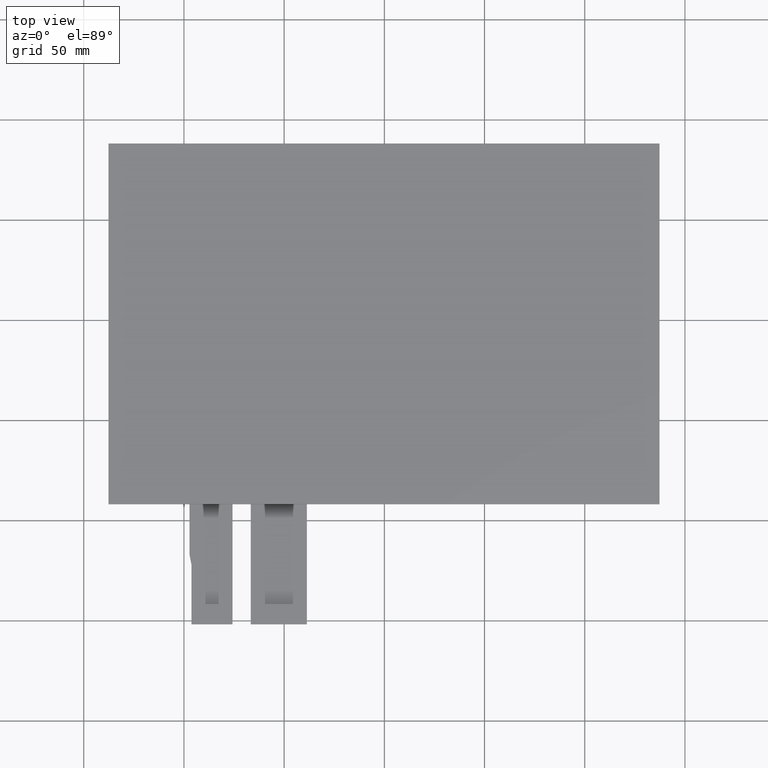
[diagram: clean part render]
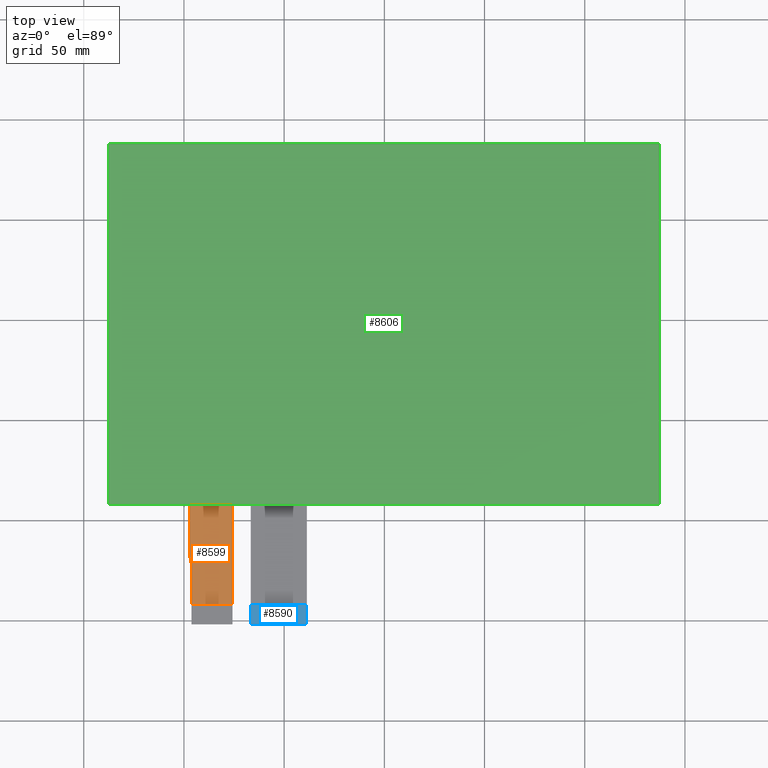
[diagram: same view with three faces highlighted in distinct colors, each labeled with its STEP entity id]
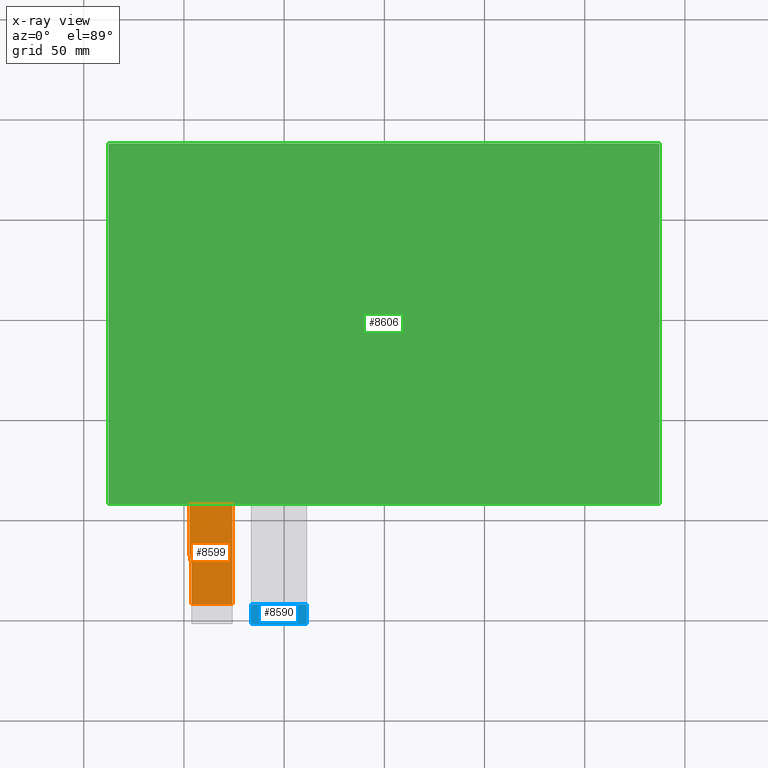
[diagram: x-ray of the same camera — body ghosted, the three highlighted faces saturated]
A machine part, top view with three faces highlighted in distinct colors.
The next image is the same camera in x-ray (body ghosted, the three faces saturated) — at least one of them is partly hidden behind the body in this view.
Their STEP definitions:

[orange] entity #8599 — the highlighted planar face has unit normal (0, 0, 1).
#469=PLANE('',#9037);
#879=FACE_OUTER_BOUND('',#1289,.T.);
#1289=EDGE_LOOP('',(#8149,#8150,#8151,#8152,#8153,#8154));
#2465=LINE('',#13446,#3675);
#2477=LINE('',#13470,#3687);
#2486=LINE('',#13489,#3696);
#2490=LINE('',#13497,#3700);
#2493=LINE('',#13502,#3703);
#2495=LINE('',#13505,#3705);
#3675=VECTOR('',#11011,10.);
#3687=VECTOR('',#11031,10.);
#3696=VECTOR('',#11050,10.);
#3700=VECTOR('',#11056,10.);
#3703=VECTOR('',#11061,10.);
#3705=VECTOR('',#11065,10.);
#4512=VERTEX_POINT('',#13443);
#4513=VERTEX_POINT('',#13445);
#4521=VERTEX_POINT('',#13469);
#4525=VERTEX_POINT('',#13487);
#4526=VERTEX_POINT('',#13488);
#4529=VERTEX_POINT('',#13496);
#5713=EDGE_CURVE('',#4513,#4512,#2465,.T.);
#5725=EDGE_CURVE('',#4521,#4513,#2477,.T.);
#5734=EDGE_CURVE('',#4525,#4526,#2486,.T.);
#5738=EDGE_CURVE('',#4526,#4529,#2490,.T.);
#5741=EDGE_CURVE('',#4529,#4521,#2493,.T.);
#5743=EDGE_CURVE('',#4525,#4512,#2495,.T.);
#8149=ORIENTED_EDGE('',*,*,#5725,.T.);
#8150=ORIENTED_EDGE('',*,*,#5713,.T.);
#8151=ORIENTED_EDGE('',*,*,#5743,.F.);
#8152=ORIENTED_EDGE('',*,*,#5734,.T.);
#8153=ORIENTED_EDGE('',*,*,#5738,.T.);
#8154=ORIENTED_EDGE('',*,*,#5741,.T.);
#8599=ADVANCED_FACE('',(#879),#469,.T.);
#9037=AXIS2_PLACEMENT_3D('',#13504,#11063,#11064);
#11011=DIRECTION('',(-4.44089209850063E-16,1.,0.));
#11031=DIRECTION('',(1.,0.,0.));
#11050=DIRECTION('',(0.,-1.,0.));
#11056=DIRECTION('',(0.190808995376545,-0.981627183447664,0.));
#11061=DIRECTION('',(0.,-1.,0.));
#11063=DIRECTION('center_axis',(0.,0.,1.));
#11064=DIRECTION('ref_axis',(1.,0.,0.));
#11065=DIRECTION('',(1.,6.45947941600091E-17,0.));
#13443=CARTESIAN_POINT('',(-75.75,-91.85,-1.1));
#13445=CARTESIAN_POINT('',(-75.75,-141.85,-1.1));
#13446=CARTESIAN_POINT('',(-75.75,-151.85,-1.1));
#13469=CARTESIAN_POINT('',(-96.25,-141.85,-1.1));
#13470=CARTESIAN_POINT('',(-81.125,-141.85,-1.1));
#13487=CARTESIAN_POINT('',(-97.25,-91.85,-1.1));
#13488=CARTESIAN_POINT('',(-97.25,-116.98544598403,-1.1));
#13489=CARTESIAN_POINT('',(-97.25,-91.85,-1.1));
#13496=CARTESIAN_POINT('',(-96.25,-122.13,-1.1));
#13497=CARTESIAN_POINT('',(-97.25,-116.98544598403,-1.1));
#13502=CARTESIAN_POINT('',(-96.25,-122.13,-1.1));
#13504=CARTESIAN_POINT('Origin',(-86.5,-121.85,-1.1));
#13505=CARTESIAN_POINT('',(25.415,-91.85,-1.1));

[blue] entity #8590 — the highlighted planar face has unit normal (0, 0, 1).
#460=PLANE('',#9028);
#870=FACE_OUTER_BOUND('',#1280,.T.);
#1280=EDGE_LOOP('',(#8101,#8102,#8103,#8104,#8105,#8106));
#1305=LINE('',#11113,#2515);
#2472=LINE('',#13459,#3682);
#2475=LINE('',#13465,#3685);
#2476=LINE('',#13467,#3686);
#2515=VECTOR('',#9063,10.);
#3682=VECTOR('',#11020,10.);
#3685=VECTOR('',#11025,10.);
#3686=VECTOR('',#11028,10.);
#3719=CIRCLE('',#8628,0.2);
#3721=CIRCLE('',#8633,0.2);
#3727=VERTEX_POINT('',#11095);
#3728=VERTEX_POINT('',#11096);
#3734=VERTEX_POINT('',#11112);
#3955=VERTEX_POINT('',#11556);
#4518=VERTEX_POINT('',#13457);
#4520=VERTEX_POINT('',#13463);
#4539=EDGE_CURVE('',#3727,#3728,#3719,.T.);
#4547=EDGE_CURVE('',#3734,#3728,#1305,.T.);
#4769=EDGE_CURVE('',#3734,#3955,#3721,.T.);
#5720=EDGE_CURVE('',#3727,#4518,#2472,.T.);
#5723=EDGE_CURVE('',#4518,#4520,#2475,.T.);
#5724=EDGE_CURVE('',#4520,#3955,#2476,.T.);
#8101=ORIENTED_EDGE('',*,*,#4539,.F.);
#8102=ORIENTED_EDGE('',*,*,#5720,.T.);
#8103=ORIENTED_EDGE('',*,*,#5723,.T.);
#8104=ORIENTED_EDGE('',*,*,#5724,.T.);
#8105=ORIENTED_EDGE('',*,*,#4769,.F.);
#8106=ORIENTED_EDGE('',*,*,#4547,.T.);
#8590=ADVANCED_FACE('',(#870),#460,.T.);
#8628=AXIS2_PLACEMENT_3D('',#11097,#9049,#9050);
#8633=AXIS2_PLACEMENT_3D('',#11557,#9287,#9288);
#9028=AXIS2_PLACEMENT_3D('',#13466,#11026,#11027);
#9049=DIRECTION('center_axis',(0.,0.,-1.));
#9050=DIRECTION('ref_axis',(0.707106781186548,-0.707106781186548,0.));
#9063=DIRECTION('',(1.,0.,0.));
#9287=DIRECTION('center_axis',(0.,0.,-1.));
#9288=DIRECTION('ref_axis',(-0.707106781186548,-0.707106781186548,0.));
#11020=DIRECTION('',(0.,1.,0.));
#11025=DIRECTION('',(-1.,0.,0.));
#11026=DIRECTION('center_axis',(0.,0.,1.));
#11027=DIRECTION('ref_axis',(1.,0.,0.));
#11028=DIRECTION('',(0.,-1.,0.));
#11095=CARTESIAN_POINT('',(-38.6676248782692,-151.65,-0.8));
#11096=CARTESIAN_POINT('',(-38.8676248782692,-151.85,-0.8));
#11097=CARTESIAN_POINT('Origin',(-38.8676248782692,-151.65,-0.8));
#11112=CARTESIAN_POINT('',(-66.4676248782692,-151.85,-0.8));
#11113=CARTESIAN_POINT('',(-66.6676248782692,-151.85,-0.8));
#11556=CARTESIAN_POINT('',(-66.6676248782692,-151.65,-0.8));
#11557=CARTESIAN_POINT('Origin',(-66.4676248782692,-151.65,-0.8));
#13457=CARTESIAN_POINT('',(-38.6676248782692,-141.85,-0.8));
#13459=CARTESIAN_POINT('',(-38.6676248782692,-151.85,-0.8));
#13463=CARTESIAN_POINT('',(-66.6676248782692,-141.85,-0.8));
#13465=CARTESIAN_POINT('',(-38.6676248782692,-141.85,-0.8));
#13466=CARTESIAN_POINT('Origin',(-52.6676248782692,-146.85,-0.8));
#13467=CARTESIAN_POINT('',(-66.6676248782692,-141.85,-0.8));

[green] entity #8606 — the highlighted planar face has unit normal (0, 0, 1).
#476=PLANE('',#9044);
#886=FACE_OUTER_BOUND('',#1298,.T.);
#1298=EDGE_LOOP('',(#8189,#8190,#8191,#8192));
#2497=LINE('',#13511,#3707);
#2501=LINE('',#13519,#3711);
#2504=LINE('',#13525,#3714);
#2507=LINE('',#13530,#3717);
#3707=VECTOR('',#11071,10.);
#3711=VECTOR('',#11077,10.);
#3714=VECTOR('',#11082,10.);
#3717=VECTOR('',#11087,10.);
#4531=VERTEX_POINT('',#13509);
#4532=VERTEX_POINT('',#13510);
#4535=VERTEX_POINT('',#13518);
#4537=VERTEX_POINT('',#13524);
#5745=EDGE_CURVE('',#4531,#4532,#2497,.T.);
#5749=EDGE_CURVE('',#4532,#4535,#2501,.T.);
#5752=EDGE_CURVE('',#4535,#4537,#2504,.T.);
#5755=EDGE_CURVE('',#4537,#4531,#2507,.T.);
#8189=ORIENTED_EDGE('',*,*,#5755,.T.);
#8190=ORIENTED_EDGE('',*,*,#5745,.T.);
#8191=ORIENTED_EDGE('',*,*,#5749,.T.);
#8192=ORIENTED_EDGE('',*,*,#5752,.T.);
#8606=ADVANCED_FACE('',(#886),#476,.T.);
#9044=AXIS2_PLACEMENT_3D('',#13533,#11091,#11092);
#11071=DIRECTION('',(-9.86864910777917E-17,1.,0.));
#11077=DIRECTION('',(-1.,0.,0.));
#11082=DIRECTION('',(1.97372982155583E-16,-1.,0.));
#11087=DIRECTION('',(1.,6.45947941600091E-17,0.));
#11091=DIRECTION('center_axis',(0.,0.,1.));
#11092=DIRECTION('ref_axis',(1.,0.,0.));
#13509=CARTESIAN_POINT('',(137.33,-91.85,0.));
#13510=CARTESIAN_POINT('',(137.33,88.15,0.));
#13511=CARTESIAN_POINT('',(137.33,-91.85,0.));
#13518=CARTESIAN_POINT('',(-137.67,88.15,0.));
#13519=CARTESIAN_POINT('',(137.33,88.15,0.));
#13524=CARTESIAN_POINT('',(-137.67,-91.85,0.));
#13525=CARTESIAN_POINT('',(-137.67,88.15,0.));
#13530=CARTESIAN_POINT('',(-137.67,-91.85,0.));
#13533=CARTESIAN_POINT('Origin',(-1.77635683940025E-14,8.88178419700125E-15,
0.));